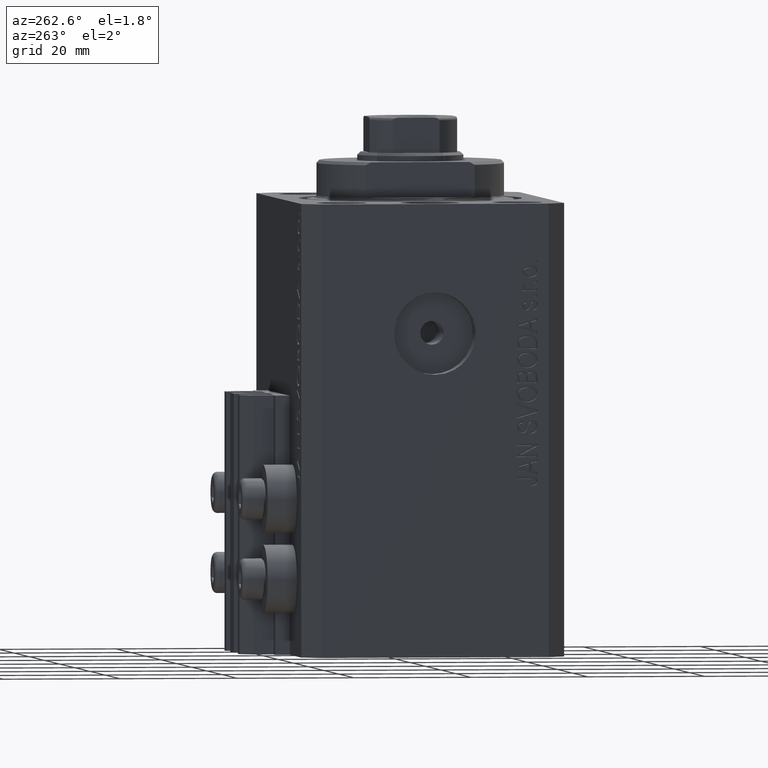
[diagram: clean part render]
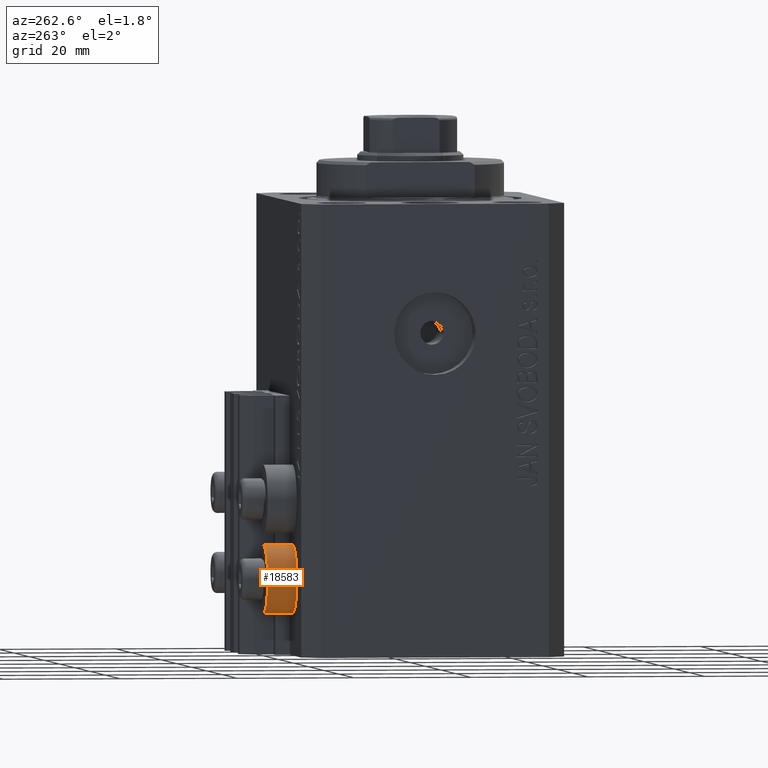
[diagram: same view with one face highlighted and labeled with its STEP entity id]
A machine part, auxiliary view. The second image highlights one B-rep face of the part: STEP entity #18583.
In plain terms, the highlighted cylindrical surface (edge-blend (fillet) strip) has radius 5.8 mm, axis along (0, 1, 0).
Its self-contained STEP definition (entity closure, byte-faithful):
#19 = DIRECTION ( 'NONE',  ( 0.000000000000000000, 0.000000000000000000, -1.000000000000000000 ) ) ;
#1505 = DIRECTION ( 'NONE',  ( -0.000000000000000000, -1.000000000000000000, -0.000000000000000000 ) ) ;
#3602 = CARTESIAN_POINT ( 'NONE',  ( -18.00000000000000355, 22.49999999999951328, -64.00000000000000000 ) ) ;
#4836 = ORIENTED_EDGE ( 'NONE', *, *, #9897, .T. ) ;
#5545 = DIRECTION ( 'NONE',  ( 0.000000000000000000, 1.000000000000000000, 0.000000000000000000 ) ) ;
#7900 = CIRCLE ( 'NONE', #25473, 5.799999999999999822 ) ;
#8720 = VERTEX_POINT ( 'NONE', #32365 ) ;
#9188 = DIRECTION ( 'NONE',  ( 0.000000000000000000, 1.000000000000000000, 0.000000000000000000 ) ) ;
#9372 = CARTESIAN_POINT ( 'NONE',  ( -18.00000000000000355, 27.49999999996051514, -64.00000000000000000 ) ) ;
#9676 = CIRCLE ( 'NONE', #18836, 5.799999999999999822 ) ;
#9897 = EDGE_CURVE ( 'NONE', #18136, #8720, #7900, .T. ) ;
#12952 = DIRECTION ( 'NONE',  ( 0.000000000000000000, 1.000000000000000000, 0.000000000000000000 ) ) ;
#16060 = DIRECTION ( 'NONE',  ( 0.000000000000000000, 0.000000000000000000, -1.000000000000000000 ) ) ;
#16106 = CARTESIAN_POINT ( 'NONE',  ( -18.00000000000000355, 27.49999999996051514, -69.79999999999999716 ) ) ;
#18136 = VERTEX_POINT ( 'NONE', #45546 ) ;
#18408 = VECTOR ( 'NONE', #9188, 1000.000000000000000 ) ;
#18583 = ADVANCED_FACE ( 'NONE', ( #35147 ), #31322, .T. ) ;
#18688 = EDGE_CURVE ( 'NONE', #24910, #31462, #9676, .T. ) ;
#18836 = AXIS2_PLACEMENT_3D ( 'NONE', #3602, #43941, #19 ) ;
#19844 = VECTOR ( 'NONE', #5545, 1000.000000000000000 ) ;
#22534 = CARTESIAN_POINT ( 'NONE',  ( -18.00000000000000355, 27.49999999996051514, -64.00000000000000000 ) ) ;
#22690 = ORIENTED_EDGE ( 'NONE', *, *, #18688, .F. ) ;
#24910 = VERTEX_POINT ( 'NONE', #32267 ) ;
#25473 = AXIS2_PLACEMENT_3D ( 'NONE', #22534, #1505, #16060 ) ;
#29411 = ORIENTED_EDGE ( 'NONE', *, *, #40794, .T. ) ;
#30349 = CARTESIAN_POINT ( 'NONE',  ( -18.00000000000000355, 22.49999999999951328, -69.79999999999999716 ) ) ;
#31322 = CYLINDRICAL_SURFACE ( 'NONE', #32531, 5.799999999999999822 ) ;
#31462 = VERTEX_POINT ( 'NONE', #30349 ) ;
#32267 = CARTESIAN_POINT ( 'NONE',  ( -18.00000000000000355, 22.49999999999951328, -58.20000000000000284 ) ) ;
#32365 = CARTESIAN_POINT ( 'NONE',  ( -18.00000000000000355, 27.49999999996051514, -69.79999999999999716 ) ) ;
#32531 = AXIS2_PLACEMENT_3D ( 'NONE', #9372, #12952, #38716 ) ;
#34895 = CARTESIAN_POINT ( 'NONE',  ( -18.00000000000000355, 27.49999999996051514, -58.20000000000000284 ) ) ;
#35147 = FACE_OUTER_BOUND ( 'NONE', #46576, .T. ) ;
#38716 = DIRECTION ( 'NONE',  ( 0.000000000000000000, 0.000000000000000000, -1.000000000000000000 ) ) ;
#38768 = LINE ( 'NONE', #16106, #18408 ) ;
#40794 = EDGE_CURVE ( 'NONE', #24910, #18136, #42779, .T. ) ;
#42779 = LINE ( 'NONE', #34895, #19844 ) ;
#43941 = DIRECTION ( 'NONE',  ( -0.000000000000000000, -1.000000000000000000, -0.000000000000000000 ) ) ;
#44921 = ORIENTED_EDGE ( 'NONE', *, *, #46836, .F. ) ;
#45546 = CARTESIAN_POINT ( 'NONE',  ( -18.00000000000000355, 27.49999999996051514, -58.20000000000000284 ) ) ;
#46576 = EDGE_LOOP ( 'NONE', ( #22690, #29411, #4836, #44921 ) ) ;
#46836 = EDGE_CURVE ( 'NONE', #31462, #8720, #38768, .T. ) ;